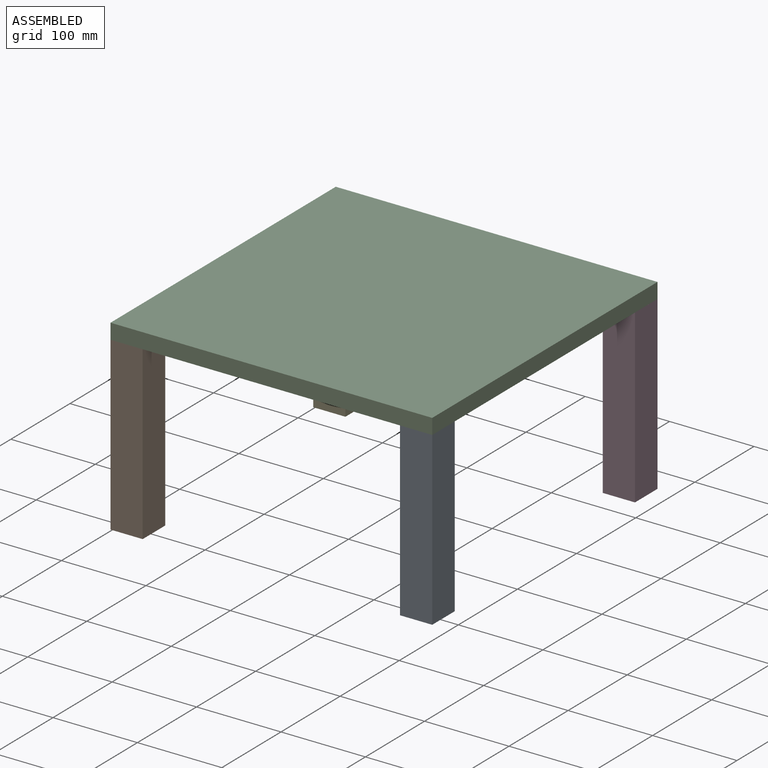
[diagram: assembled view]
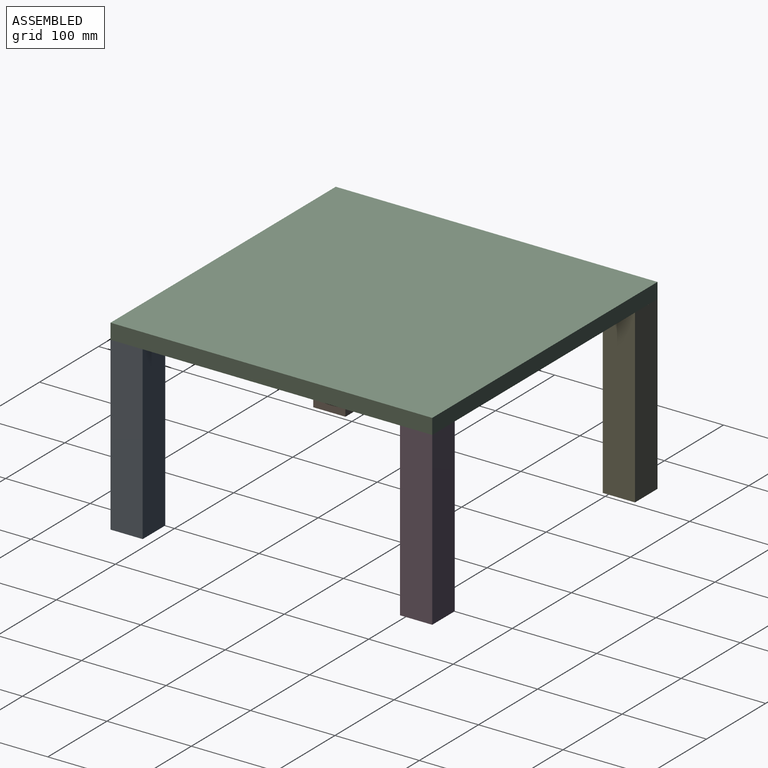
[diagram: assembled view, second angle]
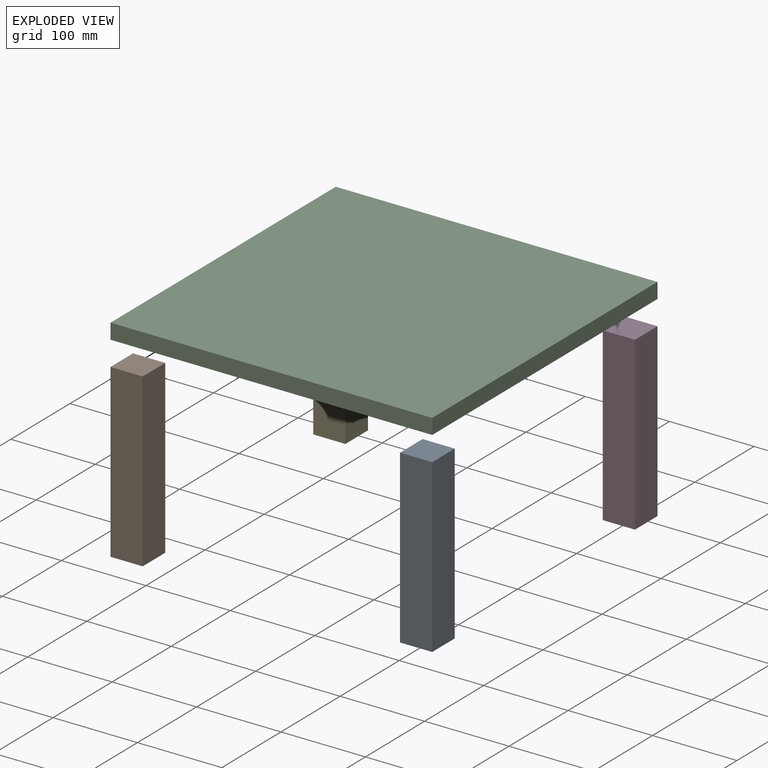
[diagram: exploded view]
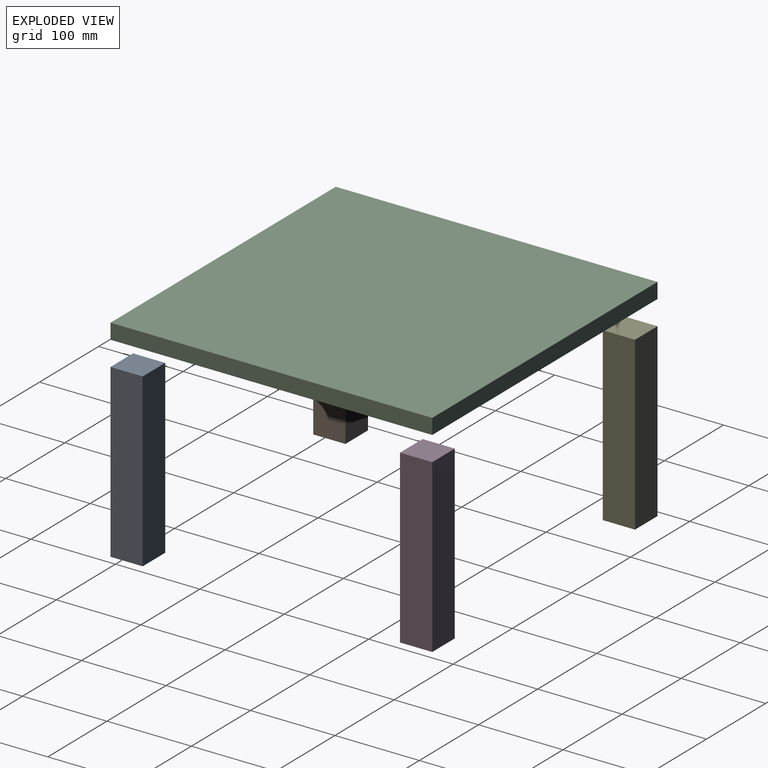
[diagram: exploded view, second angle]
ASSEMBLY  parts=5 mates=4
PART A: 6 faces, bbox 203.2x38.1x38.1 mm
  f0: plane 38.1x38.1mm, normal (-1,0,0), area 1451.6mm2, adj f1,f2,f3,f4
  f1: plane 203.2x38.1mm, normal (0,0,-1), area 7741.9mm2, adj f0,f3,f4,f5
  f2: plane 203.2x38.1mm, normal (0,0,1), area 7741.9mm2, adj f0,f3,f4,f5
  f3: plane 203.2x38.1mm, normal (0,-1,0), area 7741.9mm2, adj f0,f1,f2,f5
  f4: plane 203.2x38.1mm, normal (0,1,0), area 7741.9mm2, adj f0,f1,f2,f5
  f5: plane 38.1x38.1mm, normal (1,0,0), area 1451.6mm2, adj f1,f2,f3,f4
PART B: same geometry as A
PART C: 6 faces, bbox 381x18.3x381 mm
  f0: plane 381x18.26mm, normal (-1,0,0), area 6955.6mm2, adj f1,f3,f4,f5
  f1: plane 381x18.26mm, normal (0,0,-1), area 6955.6mm2, adj f0,f2,f4,f5
  f2: plane 381x18.26mm, normal (1,0,0), area 6955.6mm2, adj f1,f3,f4,f5
  f3: plane 381x18.26mm, normal (0,0,1), area 6955.6mm2, adj f0,f2,f4,f5
  f4: plane 381x381mm, normal (0,-1,0), area 145161mm2, adj f0,f1,f2,f3
  f5: plane 381x381mm, normal (0,1,0), area 145161mm2, adj f0,f1,f2,f3
PART D: same geometry as A
PART E: same geometry as A
PLACE A rot(axis=(0,-1,0),90deg) t=(-224.06,-14.5,-442.39)mm
PLACE B rot(axis=(0,-1,0),90deg) t=(-566.96,-14.5,-442.39)mm
PLACE C rot(axis=(-1,0,0),90deg) t=(-605.06,-52.6,-239.19)mm
PLACE D rot(axis=(-0.71,0,-0.71),180deg) t=(-262.16,290.3,-442.39)mm
PLACE E rot(axis=(0.58,-0.58,0.58),120deg) t=(-605.06,328.4,-442.39)mm
MATE fastened A.f5 <-> C.f5  axis (0,0,1) through (-224.06,-52.6,-239.19)mm
MATE fastened D.f5 <-> C.f5  axis (0,0,1) through (-224.06,328.4,-239.19)mm
MATE fastened C.f5 <-> B.f5  axis (0,0,-1) through (-605.06,-52.6,-239.19)mm
MATE fastened E.f5 <-> C.f5  axis (0,0,1) through (-605.06,328.4,-239.19)mm
